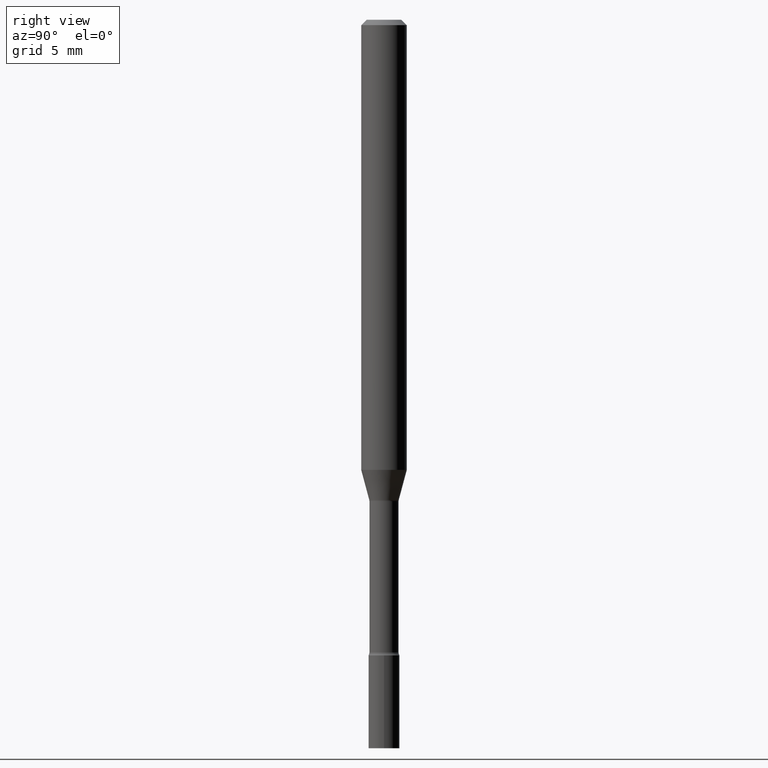
[diagram: clean part render]
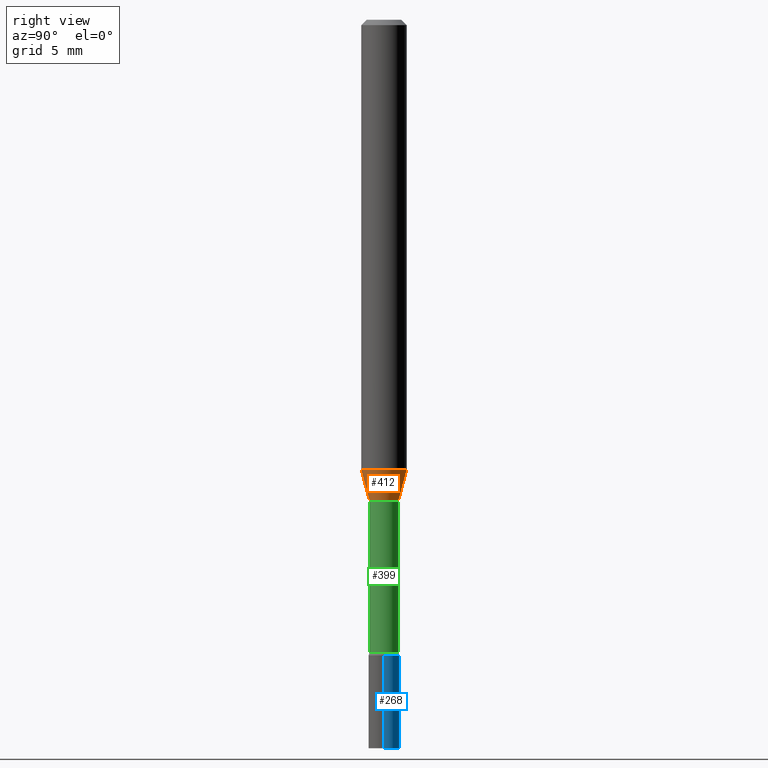
[diagram: same view with three faces highlighted in distinct colors, each labeled with its STEP entity id]
A machine part, right view with three faces highlighted in distinct colors.
Their STEP definitions:

[orange] entity #412 — the highlighted conical surface has half-angle 15 deg.
#18 = ORIENTED_EDGE ( 'NONE', *, *, #86, .T. ) ;
#23 = CARTESIAN_POINT ( 'NONE',  ( 3.022184816787956639E-29, -4.314961505561019667E-15, -1.235842254289322151 ) ) ;
#40 = VECTOR ( 'NONE', #326, 39.37007874015748854 ) ;
#48 = CARTESIAN_POINT ( 'NONE',  ( 4.440892098500929873E-16, 0.06249999999999572564, -1.235842254289322373 ) ) ;
#51 = CONICAL_SURFACE ( 'NONE', #213, 0.04046111260566398471, 0.2617993877991500740 ) ;
#63 = CARTESIAN_POINT ( 'NONE',  ( 3.223323310234520288E-29, -4.602139460955186283E-15, -1.318092501787273330 ) ) ;
#67 = ORIENTED_EDGE ( 'NONE', *, *, #291, .F. ) ;
#73 = EDGE_CURVE ( 'NONE', #464, #196, #450, .T. ) ;
#84 = CIRCLE ( 'NONE', #334, 0.04046111260566398471 ) ;
#86 = EDGE_CURVE ( 'NONE', #234, #473, #84, .T. ) ;
#89 = CARTESIAN_POINT ( 'NONE',  ( 3.657913531386922851E-16, 0.04046111260565938422, -1.318092501787273552 ) ) ;
#112 = EDGE_LOOP ( 'NONE', ( #18, #113, #385, #67 ) ) ;
#113 = ORIENTED_EDGE ( 'NONE', *, *, #243, .T. ) ;
#129 = DIRECTION ( 'NONE',  ( -6.982962677686265922E-15, -1.000000000000000000, 6.751786635945950546E-15 ) ) ;
#140 = DIRECTION ( 'NONE',  ( -6.982962677686265922E-15, -1.000000000000000000, 6.751786635945950546E-15 ) ) ;
#196 = VERTEX_POINT ( 'NONE', #48 ) ;
#205 = VECTOR ( 'NONE', #362, 39.37007874015748854 ) ;
#213 = AXIS2_PLACEMENT_3D ( 'NONE', #409, #258, #129 ) ;
#234 = VERTEX_POINT ( 'NONE', #487 ) ;
#243 = EDGE_CURVE ( 'NONE', #473, #196, #281, .T. ) ;
#248 = CARTESIAN_POINT ( 'NONE',  ( -4.364351673553612490E-16, -0.06250000000000427436, -1.235842254289321929 ) ) ;
#255 = DIRECTION ( 'NONE',  ( -2.445445449286633018E-29, 3.491514787251194982E-15, 1.000000000000000000 ) ) ;
#258 = DIRECTION ( 'NONE',  ( -2.445445449286633018E-29, 3.491514787251194982E-15, 1.000000000000000000 ) ) ;
#281 = LINE ( 'NONE', #398, #205 ) ;
#283 = CARTESIAN_POINT ( 'NONE',  ( -2.825384392229807221E-16, -0.04046111260566858520, -1.318092501787272885 ) ) ;
#291 = EDGE_CURVE ( 'NONE', #234, #464, #474, .T. ) ;
#326 = DIRECTION ( 'NONE',  ( -1.807323732225328562E-15, -0.2588190451025179639, 0.9659258262890690894 ) ) ;
#334 = AXIS2_PLACEMENT_3D ( 'NONE', #63, #370, #140 ) ;
#362 = DIRECTION ( 'NONE',  ( 1.839019923739598738E-15, 0.2588190451025247363, 0.9659258262890673130 ) ) ;
#370 = DIRECTION ( 'NONE',  ( -2.445445449286633018E-29, 3.491514787251194982E-15, 1.000000000000000000 ) ) ;
#385 = ORIENTED_EDGE ( 'NONE', *, *, #73, .F. ) ;
#398 = CARTESIAN_POINT ( 'NONE',  ( 2.874934964272917801E-16, 0.04046111260565938422, -1.318092501787273552 ) ) ;
#409 = CARTESIAN_POINT ( 'NONE',  ( 3.223323310234520288E-29, -4.602139460955186283E-15, -1.318092501787273330 ) ) ;
#411 = DIRECTION ( 'NONE',  ( -6.982962677686265922E-15, -1.000000000000000000, 4.370956789862821150E-15 ) ) ;
#412 = ADVANCED_FACE ( 'NONE', ( #495 ), #51, .T. ) ;
#450 = CIRCLE ( 'NONE', #459, 0.06250000000000000000 ) ;
#459 = AXIS2_PLACEMENT_3D ( 'NONE', #23, #255, #411 ) ;
#464 = VERTEX_POINT ( 'NONE', #248 ) ;
#473 = VERTEX_POINT ( 'NONE', #89 ) ;
#474 = LINE ( 'NONE', #283, #40 ) ;
#487 = CARTESIAN_POINT ( 'NONE',  ( -2.825384392229807221E-16, -0.04046111260566858520, -1.318092501787272885 ) ) ;
#495 = FACE_OUTER_BOUND ( 'NONE', #112, .T. ) ;

[blue] entity #268 — the highlighted cylindrical surface (edge-blend (fillet) strip) has radius 1.0795 mm, axis along (-0, 0, 1).
#28 = LINE ( 'NONE', #158, #187 ) ;
#29 = DIRECTION ( 'NONE',  ( 1.000000000000000000, -6.982962677686276177E-15, 0.000000000000000000 ) ) ;
#34 = CIRCLE ( 'NONE', #492, 0.04249999999999999611 ) ;
#36 = CARTESIAN_POINT ( 'NONE',  ( -0.04249999999999999611, -6.235818144285747159E-15, -2.000000000000000000 ) ) ;
#44 = LINE ( 'NONE', #47, #131 ) ;
#47 = CARTESIAN_POINT ( 'NONE',  ( -0.04249999999999999611, 3.019806626980425514E-16, -2.090547413358334859E-30 ) ) ;
#72 = VERTEX_POINT ( 'NONE', #139 ) ;
#76 = CIRCLE ( 'NONE', #483, 0.04249999999999999611 ) ;
#108 = DIRECTION ( 'NONE',  ( 1.000000000000000000, -6.982962677686276177E-15, 0.000000000000000000 ) ) ;
#131 = VECTOR ( 'NONE', #322, 39.37007874015748143 ) ;
#137 = EDGE_CURVE ( 'NONE', #156, #192, #28, .T. ) ;
#139 = CARTESIAN_POINT ( 'NONE',  ( -0.04249999999999999611, -6.235818144285747159E-15, -1.745000000000000107 ) ) ;
#155 = FACE_OUTER_BOUND ( 'NONE', #186, .T. ) ;
#156 = VERTEX_POINT ( 'NONE', #426 ) ;
#158 = CARTESIAN_POINT ( 'NONE',  ( 0.04249999999999999611, -2.967759138016663549E-16, 2.072375129713272502E-30 ) ) ;
#164 = AXIS2_PLACEMENT_3D ( 'NONE', #266, #343, #301 ) ;
#186 = EDGE_LOOP ( 'NONE', ( #480, #226, #420, #469 ) ) ;
#187 = VECTOR ( 'NONE', #467, 39.37007874015748143 ) ;
#192 = VERTEX_POINT ( 'NONE', #490 ) ;
#199 = EDGE_CURVE ( 'NONE', #384, #72, #44, .T. ) ;
#226 = ORIENTED_EDGE ( 'NONE', *, *, #199, .T. ) ;
#266 = CARTESIAN_POINT ( 'NONE',  ( 0.000000000000000000, 0.000000000000000000, 0.000000000000000000 ) ) ;
#268 = ADVANCED_FACE ( 'NONE', ( #155 ), #272, .T. ) ;
#272 = CYLINDRICAL_SURFACE ( 'NONE', #164, 0.04249999999999999611 ) ;
#285 = EDGE_CURVE ( 'NONE', #192, #72, #34, .T. ) ;
#301 = DIRECTION ( 'NONE',  ( 1.000000000000000000, -6.982962677686267499E-15, 4.876176775795935793E-29 ) ) ;
#308 = CARTESIAN_POINT ( 'NONE',  ( 4.267343066793063832E-29, -6.092634936281288846E-15, -1.745000000000000107 ) ) ;
#322 = DIRECTION ( 'NONE',  ( -2.445468806185136877E-29, 3.491481338843145188E-15, 1.000000000000000000 ) ) ;
#340 = EDGE_CURVE ( 'NONE', #156, #384, #76, .T. ) ;
#343 = DIRECTION ( 'NONE',  ( -2.445468806185136597E-29, 3.491481338843145583E-15, 1.000000000000000000 ) ) ;
#378 = DIRECTION ( 'NONE',  ( -2.445468806185136597E-29, 3.491481338843145583E-15, 1.000000000000000000 ) ) ;
#384 = VERTEX_POINT ( 'NONE', #36 ) ;
#420 = ORIENTED_EDGE ( 'NONE', *, *, #285, .F. ) ;
#426 = CARTESIAN_POINT ( 'NONE',  ( 0.04249999999999999611, -7.279738591487957027E-15, -2.000000000000000000 ) ) ;
#457 = CARTESIAN_POINT ( 'NONE',  ( 4.890937612370273194E-29, -6.982962677686291165E-15, -2.000000000000000000 ) ) ;
#467 = DIRECTION ( 'NONE',  ( -2.445468806185136877E-29, 3.491481338843145188E-15, 1.000000000000000000 ) ) ;
#468 = DIRECTION ( 'NONE',  ( -2.445468806185136597E-29, 3.491481338843145583E-15, 1.000000000000000000 ) ) ;
#469 = ORIENTED_EDGE ( 'NONE', *, *, #137, .F. ) ;
#480 = ORIENTED_EDGE ( 'NONE', *, *, #340, .T. ) ;
#483 = AXIS2_PLACEMENT_3D ( 'NONE', #457, #378, #29 ) ;
#490 = CARTESIAN_POINT ( 'NONE',  ( 0.04249999999999999611, -6.389410850082955497E-15, -1.745000000000000107 ) ) ;
#492 = AXIS2_PLACEMENT_3D ( 'NONE', #308, #468, #108 ) ;

[green] entity #399 — the highlighted cylindrical surface (edge-blend (fillet) strip) has radius 1.0147 mm, axis along (-0, 0, 1).
#1 = CARTESIAN_POINT ( 'NONE',  ( 0.000000000000000000, 0.000000000000000000, 0.000000000000000000 ) ) ;
#2 = EDGE_CURVE ( 'NONE', #267, #244, #341, .T. ) ;
#7 = CARTESIAN_POINT ( 'NONE',  ( 2.838618229362026185E-16, 0.03994999999999538504, -1.321974787463811474 ) ) ;
#45 = EDGE_CURVE ( 'NONE', #520, #271, #432, .T. ) ;
#94 = CARTESIAN_POINT ( 'NONE',  ( 3.232817228075041045E-29, -4.615694518803152700E-15, -1.321974787463811252 ) ) ;
#119 = DIRECTION ( 'NONE',  ( -6.982962677686265133E-15, -1.000000000000000000, 3.491514787251194588E-15 ) ) ;
#124 = DIRECTION ( 'NONE',  ( -2.445445449286633018E-29, 3.491514787251194982E-15, 1.000000000000000000 ) ) ;
#133 = DIRECTION ( 'NONE',  ( -2.445445449286633018E-29, 3.491514787251194982E-15, 1.000000000000000000 ) ) ;
#144 = CARTESIAN_POINT ( 'NONE',  ( 2.929212428171439828E-16, 0.03994999999999399726, -1.736633549139569910 ) ) ;
#148 = ORIENTED_EDGE ( 'NONE', *, *, #173, .F. ) ;
#150 = CARTESIAN_POINT ( 'NONE',  ( 2.838618229361602172E-16, 0.03995000000000003409, -1.394860157506853398E-16 ) ) ;
#173 = EDGE_CURVE ( 'NONE', #520, #267, #227, .T. ) ;
#185 = LINE ( 'NONE', #150, #231 ) ;
#201 = FACE_OUTER_BOUND ( 'NONE', #222, .T. ) ;
#222 = EDGE_LOOP ( 'NONE', ( #229, #429, #286, #148 ) ) ;
#227 = LINE ( 'NONE', #242, #252 ) ;
#229 = ORIENTED_EDGE ( 'NONE', *, *, #45, .T. ) ;
#231 = VECTOR ( 'NONE', #303, 39.37007874015748143 ) ;
#242 = CARTESIAN_POINT ( 'NONE',  ( -2.789693589735665255E-16, -0.03995000000000003409, 1.394860157506853398E-16 ) ) ;
#244 = VERTEX_POINT ( 'NONE', #7 ) ;
#252 = VECTOR ( 'NONE', #124, 39.37007874015748143 ) ;
#265 = DIRECTION ( 'NONE',  ( -6.982962677686265922E-15, -1.000000000000000000, 6.838167693777870716E-15 ) ) ;
#267 = VERTEX_POINT ( 'NONE', #477 ) ;
#271 = VERTEX_POINT ( 'NONE', #144 ) ;
#286 = ORIENTED_EDGE ( 'NONE', *, *, #2, .F. ) ;
#294 = DIRECTION ( 'NONE',  ( -6.982962677686265133E-15, -1.000000000000000000, 6.838167693777879394E-15 ) ) ;
#296 = AXIS2_PLACEMENT_3D ( 'NONE', #377, #133, #265 ) ;
#297 = AXIS2_PLACEMENT_3D ( 'NONE', #1, #482, #119 ) ;
#303 = DIRECTION ( 'NONE',  ( -2.445445449286633018E-29, 3.491514787251194982E-15, 1.000000000000000000 ) ) ;
#341 = CIRCLE ( 'NONE', #407, 0.03995000000000000634 ) ;
#355 = CYLINDRICAL_SURFACE ( 'NONE', #297, 0.03995000000000003409 ) ;
#365 = EDGE_CURVE ( 'NONE', #271, #244, #185, .T. ) ;
#377 = CARTESIAN_POINT ( 'NONE',  ( 4.246842609821854731E-29, -6.063481716857332136E-15, -1.736633549139569688 ) ) ;
#399 = ADVANCED_FACE ( 'NONE', ( #201 ), #355, .T. ) ;
#407 = AXIS2_PLACEMENT_3D ( 'NONE', #94, #498, #294 ) ;
#429 = ORIENTED_EDGE ( 'NONE', *, *, #365, .T. ) ;
#432 = CIRCLE ( 'NONE', #296, 0.03995000000000005491 ) ;
#477 = CARTESIAN_POINT ( 'NONE',  ( -2.789693589735340343E-16, -0.03995000000000462764, -1.321974787463810808 ) ) ;
#482 = DIRECTION ( 'NONE',  ( -2.445445449286633018E-29, 3.491514787251194982E-15, 1.000000000000000000 ) ) ;
#491 = CARTESIAN_POINT ( 'NONE',  ( -2.789693589735242721E-16, -0.03995000000000611950, -1.736633549139569244 ) ) ;
#498 = DIRECTION ( 'NONE',  ( -2.445445449286633018E-29, 3.491514787251194982E-15, 1.000000000000000000 ) ) ;
#520 = VERTEX_POINT ( 'NONE', #491 ) ;